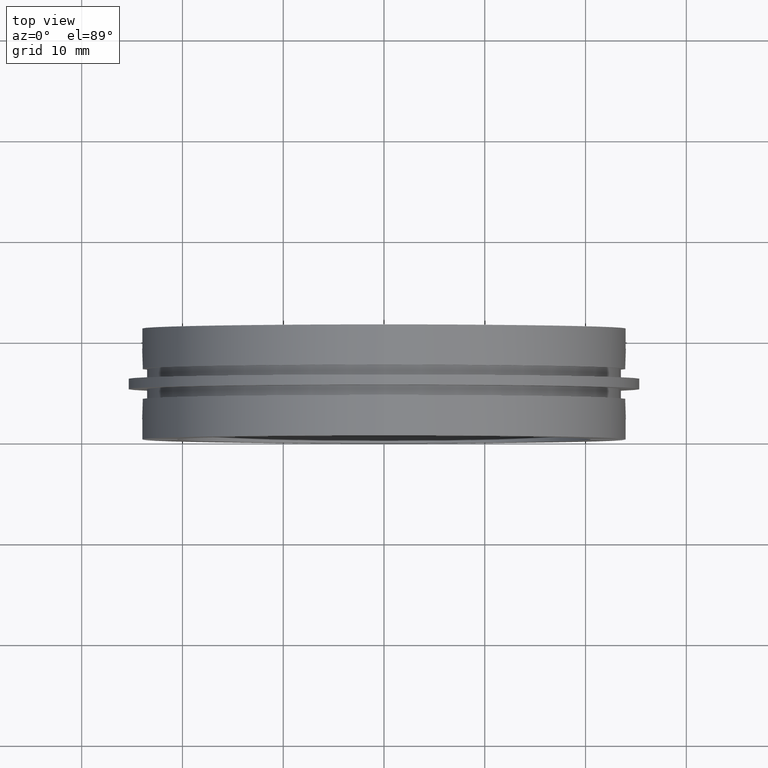
[diagram: clean part render]
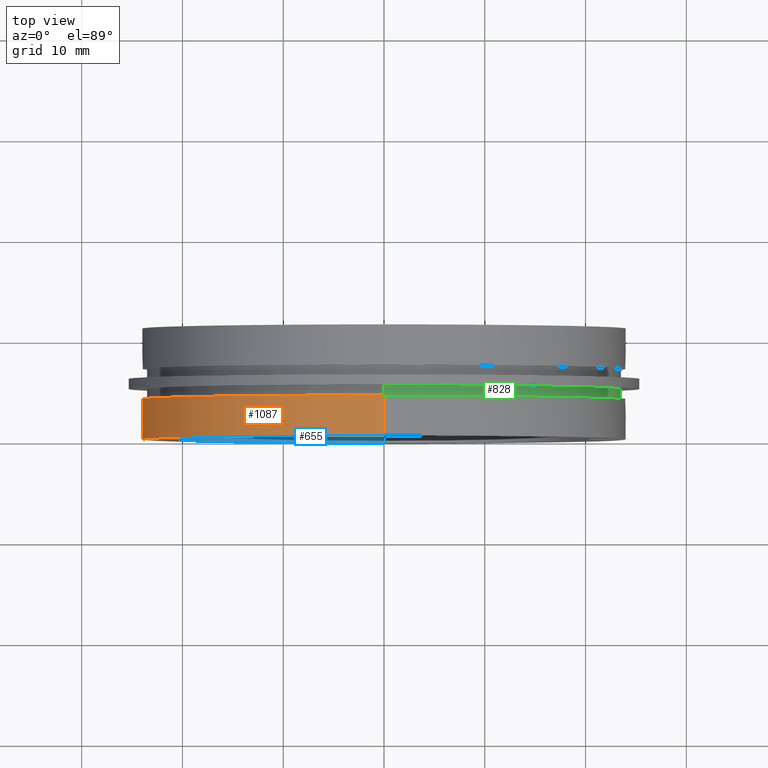
[diagram: same view with three faces highlighted in distinct colors, each labeled with its STEP entity id]
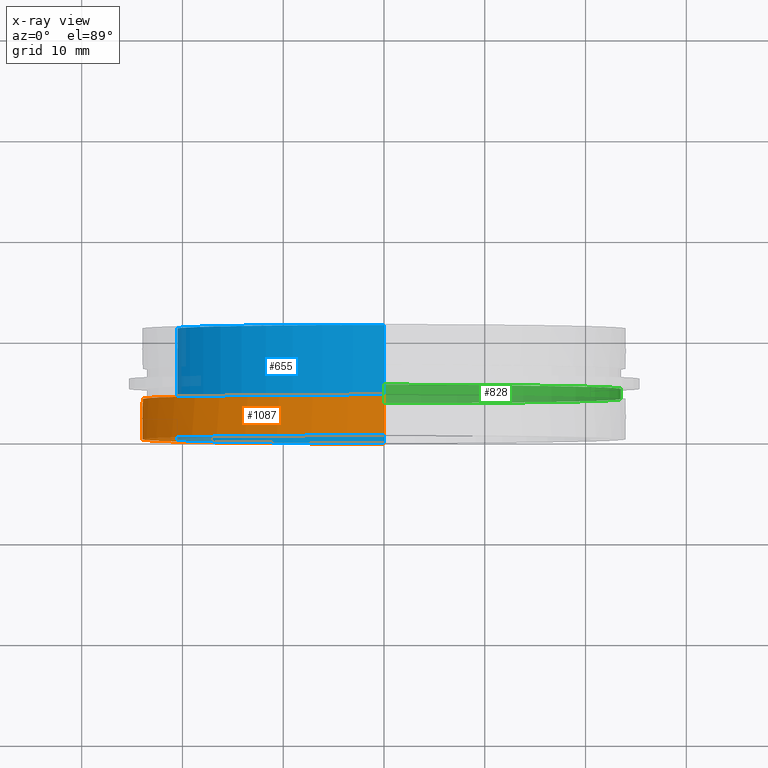
[diagram: x-ray of the same camera — body ghosted, the three highlighted faces saturated]
A machine part, top view with three faces highlighted in distinct colors.
The next image is the same camera in x-ray (body ghosted, the three faces saturated) — at least one of them is partly hidden behind the body in this view.
Their STEP definitions:

[orange] entity #1087 — the highlighted cylindrical surface (partial cylindrical patch) has radius 24 mm, axis along (-0, 1, -0).
#6 = DIRECTION ( 'NONE',  ( -0.0000000000000000000, 1.000000000000000000, -0.0000000000000000000 ) ) ;
#18 = CARTESIAN_POINT ( 'NONE',  ( 0.0000000000000000000, 22.67749945107591400, 0.0000000000000000000 ) ) ;
#53 = EDGE_CURVE ( 'NONE', #882, #296, #698, .T. ) ;
#74 = ORIENTED_EDGE ( 'NONE', *, *, #53, .F. ) ;
#82 = DIRECTION ( 'NONE',  ( 0.0000000000000000000, 0.0000000000000000000, 1.000000000000000000 ) ) ;
#96 = EDGE_LOOP ( 'NONE', ( #1080, #735, #413, #912, #627, #392, #553, #74 ) ) ;
#126 = AXIS2_PLACEMENT_3D ( 'NONE', #609, #521, #432 ) ;
#140 = AXIS2_PLACEMENT_3D ( 'NONE', #18, #381, #942 ) ;
#171 = CARTESIAN_POINT ( 'NONE',  ( 2.939152317953647500E-015, 0.0000000000000000000, -23.99999999999999600 ) ) ;
#219 = DIRECTION ( 'NONE',  ( 0.0000000000000000000, -1.000000000000000000, 0.0000000000000000000 ) ) ;
#253 = VECTOR ( 'NONE', #6, 1000.000000000000000 ) ;
#260 = VERTEX_POINT ( 'NONE', #430 ) ;
#276 = DIRECTION ( 'NONE',  ( -0.0000000000000000000, 1.000000000000000000, -0.0000000000000000000 ) ) ;
#281 = VERTEX_POINT ( 'NONE', #613 ) ;
#294 = EDGE_CURVE ( 'NONE', #725, #777, #636, .T. ) ;
#296 = VERTEX_POINT ( 'NONE', #1055 ) ;
#312 = DIRECTION ( 'NONE',  ( 0.0000000000000000000, 0.0000000000000000000, 1.000000000000000000 ) ) ;
#373 = LINE ( 'NONE', #1146, #794 ) ;
#381 = DIRECTION ( 'NONE',  ( -0.0000000000000000000, 1.000000000000000000, -0.0000000000000000000 ) ) ;
#392 = ORIENTED_EDGE ( 'NONE', *, *, #827, .T. ) ;
#395 = CARTESIAN_POINT ( 'NONE',  ( 0.0000000000000000000, 4.000000000000000000, 0.0000000000000000000 ) ) ;
#413 = ORIENTED_EDGE ( 'NONE', *, *, #524, .F. ) ;
#416 = LINE ( 'NONE', #659, #1091 ) ;
#430 = CARTESIAN_POINT ( 'NONE',  ( -23.97915761656359700, 1.999999999999998200, 1.000000000000000200 ) ) ;
#432 = DIRECTION ( 'NONE',  ( 0.0000000000000000000, 0.0000000000000000000, 1.000000000000000000 ) ) ;
#439 = CARTESIAN_POINT ( 'NONE',  ( 0.0000000000000000000, 22.67749945107591400, 23.99999999999999600 ) ) ;
#467 = DIRECTION ( 'NONE',  ( -0.0000000000000000000, 1.000000000000000000, -0.0000000000000000000 ) ) ;
#521 = DIRECTION ( 'NONE',  ( -0.0000000000000000000, -1.000000000000000000, -0.0000000000000000000 ) ) ;
#524 = EDGE_CURVE ( 'NONE', #628, #777, #416, .T. ) ;
#553 = ORIENTED_EDGE ( 'NONE', *, *, #970, .T. ) ;
#559 = FACE_OUTER_BOUND ( 'NONE', #96, .T. ) ;
#589 = VECTOR ( 'NONE', #1004, 1000.000000000000000 ) ;
#604 = AXIS2_PLACEMENT_3D ( 'NONE', #805, #276, #693 ) ;
#609 = CARTESIAN_POINT ( 'NONE',  ( 0.0000000000000000000, 1.999999999999998200, 0.0000000000000000000 ) ) ;
#613 = CARTESIAN_POINT ( 'NONE',  ( -23.97915761656359700, 0.0000000000000000000, 1.000000000000000000 ) ) ;
#616 = DIRECTION ( 'NONE',  ( -0.0000000000000000000, 1.000000000000000000, -0.0000000000000000000 ) ) ;
#627 = ORIENTED_EDGE ( 'NONE', *, *, #1061, .F. ) ;
#628 = VERTEX_POINT ( 'NONE', #816 ) ;
#636 = CIRCLE ( 'NONE', #1027, 23.99999999999999600 ) ;
#659 = CARTESIAN_POINT ( 'NONE',  ( -23.97915761656359400, 22.67749945107591400, -0.9999999999999943400 ) ) ;
#672 = CARTESIAN_POINT ( 'NONE',  ( -23.97915761656359700, 0.0000000000000000000, -1.000000000000000000 ) ) ;
#681 = CYLINDRICAL_SURFACE ( 'NONE', #140, 23.99999999999999600 ) ;
#693 = DIRECTION ( 'NONE',  ( 0.0000000000000000000, 0.0000000000000000000, 1.000000000000000000 ) ) ;
#698 = CIRCLE ( 'NONE', #809, 23.99999999999999600 ) ;
#713 = VERTEX_POINT ( 'NONE', #1035 ) ;
#725 = VERTEX_POINT ( 'NONE', #171 ) ;
#735 = ORIENTED_EDGE ( 'NONE', *, *, #294, .T. ) ;
#770 = EDGE_CURVE ( 'NONE', #260, #628, #976, .T. ) ;
#777 = VERTEX_POINT ( 'NONE', #672 ) ;
#794 = VECTOR ( 'NONE', #467, 1000.000000000000000 ) ;
#805 = CARTESIAN_POINT ( 'NONE',  ( 0.0000000000000000000, 0.0000000000000000000, 0.0000000000000000000 ) ) ;
#809 = AXIS2_PLACEMENT_3D ( 'NONE', #395, #839, #312 ) ;
#815 = LINE ( 'NONE', #939, #589 ) ;
#816 = CARTESIAN_POINT ( 'NONE',  ( -23.97915761656359400, 2.000000000000000000, -0.9999999999999995600 ) ) ;
#827 = EDGE_CURVE ( 'NONE', #281, #713, #833, .T. ) ;
#833 = CIRCLE ( 'NONE', #604, 23.99999999999999600 ) ;
#839 = DIRECTION ( 'NONE',  ( -0.0000000000000000000, 1.000000000000000000, -0.0000000000000000000 ) ) ;
#871 = CARTESIAN_POINT ( 'NONE',  ( 2.939152317953647500E-015, 4.000000000000000000, -23.99999999999999600 ) ) ;
#882 = VERTEX_POINT ( 'NONE', #871 ) ;
#912 = ORIENTED_EDGE ( 'NONE', *, *, #770, .F. ) ;
#939 = CARTESIAN_POINT ( 'NONE',  ( -23.97915761656359700, 22.67749945107591400, 1.000000000000003800 ) ) ;
#942 = DIRECTION ( 'NONE',  ( 0.0000000000000000000, 0.0000000000000000000, 1.000000000000000000 ) ) ;
#965 = LINE ( 'NONE', #439, #253 ) ;
#970 = EDGE_CURVE ( 'NONE', #713, #296, #965, .T. ) ;
#976 = CIRCLE ( 'NONE', #126, 23.99999999999999600 ) ;
#1004 = DIRECTION ( 'NONE',  ( -0.0000000000000000000, 1.000000000000000000, -0.0000000000000000000 ) ) ;
#1027 = AXIS2_PLACEMENT_3D ( 'NONE', #1143, #616, #82 ) ;
#1035 = CARTESIAN_POINT ( 'NONE',  ( 0.0000000000000000000, 0.0000000000000000000, 23.99999999999999600 ) ) ;
#1055 = CARTESIAN_POINT ( 'NONE',  ( 0.0000000000000000000, 4.000000000000000000, 23.99999999999999600 ) ) ;
#1061 = EDGE_CURVE ( 'NONE', #281, #260, #815, .T. ) ;
#1068 = EDGE_CURVE ( 'NONE', #725, #882, #373, .T. ) ;
#1080 = ORIENTED_EDGE ( 'NONE', *, *, #1068, .F. ) ;
#1087 = ADVANCED_FACE ( 'NONE', ( #559 ), #681, .T. ) ;
#1091 = VECTOR ( 'NONE', #219, 1000.000000000000000 ) ;
#1143 = CARTESIAN_POINT ( 'NONE',  ( 0.0000000000000000000, 0.0000000000000000000, 0.0000000000000000000 ) ) ;
#1146 = CARTESIAN_POINT ( 'NONE',  ( 2.939152317953647500E-015, 22.67749945107591400, -23.99999999999999600 ) ) ;

[blue] entity #655 — the highlighted cylindrical surface (partial cylindrical patch) has radius 20.5 mm, axis along (-0, 1, -0).
#7 = AXIS2_PLACEMENT_3D ( 'NONE', #222, #768, #811 ) ;
#10 = CARTESIAN_POINT ( 'NONE',  ( 2.510525938252074100E-015, 22.67749945107591400, -20.49999999999999600 ) ) ;
#58 = LINE ( 'NONE', #10, #498 ) ;
#77 = CARTESIAN_POINT ( 'NONE',  ( -20.47559522944326500, 1.999999999999998200, 1.000000000000000200 ) ) ;
#78 = CARTESIAN_POINT ( 'NONE',  ( -20.47559522944326500, 0.0000000000000000000, -1.000000000000000000 ) ) ;
#80 = CYLINDRICAL_SURFACE ( 'NONE', #982, 20.49999999999999600 ) ;
#89 = DIRECTION ( 'NONE',  ( -0.0000000000000000000, 1.000000000000000000, -0.0000000000000000000 ) ) ;
#95 = LINE ( 'NONE', #911, #831 ) ;
#106 = VECTOR ( 'NONE', #712, 1000.000000000000000 ) ;
#115 = CARTESIAN_POINT ( 'NONE',  ( -20.47559522944326500, 0.0000000000000000000, 1.000000000000000000 ) ) ;
#132 = ORIENTED_EDGE ( 'NONE', *, *, #951, .F. ) ;
#141 = EDGE_LOOP ( 'NONE', ( #249, #684, #532, #776, #132, #580, #674, #891, #460, #1036, #879, #819 ) ) ;
#181 = VECTOR ( 'NONE', #393, 1000.000000000000000 ) ;
#192 = FACE_OUTER_BOUND ( 'NONE', #141, .T. ) ;
#215 = DIRECTION ( 'NONE',  ( 0.0000000000000000000, 0.0000000000000000000, 1.000000000000000000 ) ) ;
#222 = CARTESIAN_POINT ( 'NONE',  ( 0.0000000000000000000, 11.00000000000000000, 0.0000000000000000000 ) ) ;
#232 = AXIS2_PLACEMENT_3D ( 'NONE', #804, #272, #897 ) ;
#246 = EDGE_CURVE ( 'NONE', #448, #259, #666, .T. ) ;
#249 = ORIENTED_EDGE ( 'NONE', *, *, #1134, .F. ) ;
#259 = VERTEX_POINT ( 'NONE', #77 ) ;
#272 = DIRECTION ( 'NONE',  ( -0.0000000000000000000, 1.000000000000000000, -0.0000000000000000000 ) ) ;
#285 = VERTEX_POINT ( 'NONE', #78 ) ;
#291 = DIRECTION ( 'NONE',  ( -0.0000000000000000000, 1.000000000000000000, -0.0000000000000000000 ) ) ;
#345 = DIRECTION ( 'NONE',  ( 0.0000000000000000000, 1.000000000000000000, 0.0000000000000000000 ) ) ;
#351 = VECTOR ( 'NONE', #914, 1000.000000000000000 ) ;
#352 = EDGE_CURVE ( 'NONE', #561, #597, #1052, .T. ) ;
#355 = EDGE_CURVE ( 'NONE', #638, #993, #814, .T. ) ;
#382 = EDGE_CURVE ( 'NONE', #633, #1023, #850, .T. ) ;
#386 = VERTEX_POINT ( 'NONE', #447 ) ;
#393 = DIRECTION ( 'NONE',  ( -0.0000000000000000000, 1.000000000000000000, -0.0000000000000000000 ) ) ;
#401 = CARTESIAN_POINT ( 'NONE',  ( 2.510525938252074100E-015, 0.0000000000000000000, -20.49999999999999600 ) ) ;
#404 = AXIS2_PLACEMENT_3D ( 'NONE', #446, #1069, #535 ) ;
#422 = EDGE_CURVE ( 'NONE', #808, #386, #58, .T. ) ;
#446 = CARTESIAN_POINT ( 'NONE',  ( 0.0000000000000000000, 9.000000000000000000, 0.0000000000000000000 ) ) ;
#447 = CARTESIAN_POINT ( 'NONE',  ( 2.510525938252074500E-015, 11.00000000000000000, -20.50000000000000000 ) ) ;
#448 = VERTEX_POINT ( 'NONE', #904 ) ;
#450 = DIRECTION ( 'NONE',  ( -0.0000000000000000000, 1.000000000000000000, -0.0000000000000000000 ) ) ;
#460 = ORIENTED_EDGE ( 'NONE', *, *, #382, .F. ) ;
#479 = CARTESIAN_POINT ( 'NONE',  ( -20.47559522944326500, 22.67749945107591400, -0.9999999999999943400 ) ) ;
#482 = EDGE_CURVE ( 'NONE', #285, #448, #890, .T. ) ;
#492 = AXIS2_PLACEMENT_3D ( 'NONE', #582, #845, #215 ) ;
#498 = VECTOR ( 'NONE', #988, 1000.000000000000000 ) ;
#520 = CIRCLE ( 'NONE', #7, 20.50000000000000000 ) ;
#532 = ORIENTED_EDGE ( 'NONE', *, *, #742, .T. ) ;
#535 = DIRECTION ( 'NONE',  ( 0.0000000000000000000, 0.0000000000000000000, -1.000000000000000000 ) ) ;
#538 = CARTESIAN_POINT ( 'NONE',  ( 0.0000000000000000000, 11.00000000000000000, 0.0000000000000000000 ) ) ;
#560 = CARTESIAN_POINT ( 'NONE',  ( -20.47559522944327200, 11.00000000000000000, -0.9999999999999978900 ) ) ;
#561 = VERTEX_POINT ( 'NONE', #937 ) ;
#569 = DIRECTION ( 'NONE',  ( -0.0000000000000000000, 1.000000000000000000, -0.0000000000000000000 ) ) ;
#580 = ORIENTED_EDGE ( 'NONE', *, *, #355, .F. ) ;
#582 = CARTESIAN_POINT ( 'NONE',  ( 0.0000000000000000000, 0.0000000000000000000, 0.0000000000000000000 ) ) ;
#587 = VECTOR ( 'NONE', #89, 1000.000000000000000 ) ;
#591 = EDGE_CURVE ( 'NONE', #1023, #620, #95, .T. ) ;
#597 = VERTEX_POINT ( 'NONE', #560 ) ;
#620 = VERTEX_POINT ( 'NONE', #644 ) ;
#621 = CARTESIAN_POINT ( 'NONE',  ( -20.47559522944326500, 22.67749945107591400, -1.000000000000000000 ) ) ;
#633 = VERTEX_POINT ( 'NONE', #115 ) ;
#638 = VERTEX_POINT ( 'NONE', #650 ) ;
#644 = CARTESIAN_POINT ( 'NONE',  ( 0.0000000000000000000, 11.00000000000000000, 20.50000000000000000 ) ) ;
#650 = CARTESIAN_POINT ( 'NONE',  ( -20.47559522944326800, 11.00000000000000000, 1.000000000000001300 ) ) ;
#655 = ADVANCED_FACE ( 'NONE', ( #192 ), #80, .F. ) ;
#660 = AXIS2_PLACEMENT_3D ( 'NONE', #538, #450, #985 ) ;
#666 = CIRCLE ( 'NONE', #908, 20.49999999999999600 ) ;
#674 = ORIENTED_EDGE ( 'NONE', *, *, #823, .T. ) ;
#684 = ORIENTED_EDGE ( 'NONE', *, *, #422, .T. ) ;
#712 = DIRECTION ( 'NONE',  ( 0.0000000000000000000, -1.000000000000000000, 0.0000000000000000000 ) ) ;
#727 = CARTESIAN_POINT ( 'NONE',  ( 0.0000000000000000000, 22.67749945107591400, 0.0000000000000000000 ) ) ;
#742 = EDGE_CURVE ( 'NONE', #386, #597, #520, .T. ) ;
#768 = DIRECTION ( 'NONE',  ( -0.0000000000000000000, 1.000000000000000000, -0.0000000000000000000 ) ) ;
#771 = CIRCLE ( 'NONE', #660, 20.50000000000000000 ) ;
#776 = ORIENTED_EDGE ( 'NONE', *, *, #352, .F. ) ;
#804 = CARTESIAN_POINT ( 'NONE',  ( 0.0000000000000000000, 0.0000000000000000000, 0.0000000000000000000 ) ) ;
#808 = VERTEX_POINT ( 'NONE', #401 ) ;
#811 = DIRECTION ( 'NONE',  ( 0.0000000000000000000, 0.0000000000000000000, 1.000000000000000000 ) ) ;
#814 = LINE ( 'NONE', #889, #106 ) ;
#819 = ORIENTED_EDGE ( 'NONE', *, *, #482, .F. ) ;
#823 = EDGE_CURVE ( 'NONE', #638, #620, #771, .T. ) ;
#831 = VECTOR ( 'NONE', #291, 1000.000000000000000 ) ;
#845 = DIRECTION ( 'NONE',  ( -0.0000000000000000000, 1.000000000000000000, -0.0000000000000000000 ) ) ;
#850 = CIRCLE ( 'NONE', #232, 20.49999999999999600 ) ;
#879 = ORIENTED_EDGE ( 'NONE', *, *, #246, .F. ) ;
#889 = CARTESIAN_POINT ( 'NONE',  ( -20.47559522944326500, 22.67749945107591400, 1.000000000000003100 ) ) ;
#890 = LINE ( 'NONE', #479, #181 ) ;
#891 = ORIENTED_EDGE ( 'NONE', *, *, #591, .F. ) ;
#897 = DIRECTION ( 'NONE',  ( 0.0000000000000000000, 0.0000000000000000000, 1.000000000000000000 ) ) ;
#904 = CARTESIAN_POINT ( 'NONE',  ( -20.47559522944326500, 2.000000000000000000, -0.9999999999999995600 ) ) ;
#908 = AXIS2_PLACEMENT_3D ( 'NONE', #1128, #345, #969 ) ;
#911 = CARTESIAN_POINT ( 'NONE',  ( 0.0000000000000000000, 22.67749945107591400, 20.49999999999999600 ) ) ;
#914 = DIRECTION ( 'NONE',  ( 0.0000000000000000000, -1.000000000000000000, 0.0000000000000000000 ) ) ;
#937 = CARTESIAN_POINT ( 'NONE',  ( -20.47559522944326800, 9.000000000000000000, -0.9999999999999974500 ) ) ;
#951 = EDGE_CURVE ( 'NONE', #993, #561, #991, .T. ) ;
#969 = DIRECTION ( 'NONE',  ( 0.0000000000000000000, 0.0000000000000000000, 1.000000000000000000 ) ) ;
#982 = AXIS2_PLACEMENT_3D ( 'NONE', #727, #569, #1126 ) ;
#985 = DIRECTION ( 'NONE',  ( 0.0000000000000000000, 0.0000000000000000000, 1.000000000000000000 ) ) ;
#988 = DIRECTION ( 'NONE',  ( -0.0000000000000000000, 1.000000000000000000, -0.0000000000000000000 ) ) ;
#991 = CIRCLE ( 'NONE', #404, 20.49999999999999600 ) ;
#993 = VERTEX_POINT ( 'NONE', #1064 ) ;
#1023 = VERTEX_POINT ( 'NONE', #1057 ) ;
#1029 = EDGE_CURVE ( 'NONE', #259, #633, #1056, .T. ) ;
#1036 = ORIENTED_EDGE ( 'NONE', *, *, #1029, .F. ) ;
#1052 = LINE ( 'NONE', #621, #587 ) ;
#1056 = LINE ( 'NONE', #1116, #351 ) ;
#1057 = CARTESIAN_POINT ( 'NONE',  ( 0.0000000000000000000, 0.0000000000000000000, 20.49999999999999600 ) ) ;
#1064 = CARTESIAN_POINT ( 'NONE',  ( -20.47559522944326500, 9.000000000000000000, 1.000000000000001100 ) ) ;
#1069 = DIRECTION ( 'NONE',  ( -0.0000000000000000000, -1.000000000000000000, -0.0000000000000000000 ) ) ;
#1116 = CARTESIAN_POINT ( 'NONE',  ( -20.47559522944326500, 22.67749945107591400, 1.000000000000003800 ) ) ;
#1122 = CIRCLE ( 'NONE', #492, 20.49999999999999600 ) ;
#1126 = DIRECTION ( 'NONE',  ( 0.0000000000000000000, 0.0000000000000000000, 1.000000000000000000 ) ) ;
#1128 = CARTESIAN_POINT ( 'NONE',  ( 0.0000000000000000000, 1.999999999999998200, 0.0000000000000000000 ) ) ;
#1134 = EDGE_CURVE ( 'NONE', #808, #285, #1122, .T. ) ;

[green] entity #828 — the highlighted cylindrical surface (partial cylindrical patch) has radius 23.5 mm, axis along (-0, 1, -0).
#32 = DIRECTION ( 'NONE',  ( 0.0000000000000000000, 0.0000000000000000000, 1.000000000000000000 ) ) ;
#34 = DIRECTION ( 'NONE',  ( -0.0000000000000000000, 1.000000000000000000, -0.0000000000000000000 ) ) ;
#87 = VERTEX_POINT ( 'NONE', #136 ) ;
#109 = EDGE_CURVE ( 'NONE', #385, #335, #1114, .T. ) ;
#128 = LINE ( 'NONE', #406, #1040 ) ;
#136 = CARTESIAN_POINT ( 'NONE',  ( 0.0000000000000000000, 4.000000000000000000, 23.49999999999999600 ) ) ;
#153 = DIRECTION ( 'NONE',  ( 0.0000000000000000000, 0.0000000000000000000, 1.000000000000000000 ) ) ;
#163 = DIRECTION ( 'NONE',  ( -0.0000000000000000000, 1.000000000000000000, -0.0000000000000000000 ) ) ;
#202 = VECTOR ( 'NONE', #34, 1000.000000000000000 ) ;
#211 = DIRECTION ( 'NONE',  ( -0.0000000000000000000, 1.000000000000000000, -0.0000000000000000000 ) ) ;
#264 = LINE ( 'NONE', #1095, #202 ) ;
#318 = CARTESIAN_POINT ( 'NONE',  ( 2.877919977996279900E-015, 4.000000000000000000, -23.49999999999999600 ) ) ;
#335 = VERTEX_POINT ( 'NONE', #796 ) ;
#385 = VERTEX_POINT ( 'NONE', #984 ) ;
#406 = CARTESIAN_POINT ( 'NONE',  ( 0.0000000000000000000, 22.67749945107591400, 23.50000000000000000 ) ) ;
#471 = EDGE_CURVE ( 'NONE', #545, #335, #264, .T. ) ;
#495 = ORIENTED_EDGE ( 'NONE', *, *, #863, .T. ) ;
#526 = FACE_OUTER_BOUND ( 'NONE', #759, .T. ) ;
#545 = VERTEX_POINT ( 'NONE', #318 ) ;
#546 = DIRECTION ( 'NONE',  ( -0.0000000000000000000, 1.000000000000000000, -0.0000000000000000000 ) ) ;
#564 = CARTESIAN_POINT ( 'NONE',  ( 0.0000000000000000000, 5.000000000000000900, 0.0000000000000000000 ) ) ;
#570 = ORIENTED_EDGE ( 'NONE', *, *, #471, .T. ) ;
#626 = DIRECTION ( 'NONE',  ( 0.0000000000000000000, 0.0000000000000000000, 1.000000000000000000 ) ) ;
#759 = EDGE_LOOP ( 'NONE', ( #495, #570, #1140, #1102 ) ) ;
#781 = CARTESIAN_POINT ( 'NONE',  ( 0.0000000000000000000, 4.000000000000000000, 0.0000000000000000000 ) ) ;
#796 = CARTESIAN_POINT ( 'NONE',  ( 2.877919977996280300E-015, 5.000000000000000900, -23.50000000000000000 ) ) ;
#800 = DIRECTION ( 'NONE',  ( -0.0000000000000000000, 1.000000000000000000, -0.0000000000000000000 ) ) ;
#807 = CIRCLE ( 'NONE', #962, 23.49999999999999600 ) ;
#828 = ADVANCED_FACE ( 'NONE', ( #526 ), #1041, .T. ) ;
#863 = EDGE_CURVE ( 'NONE', #87, #545, #807, .T. ) ;
#872 = AXIS2_PLACEMENT_3D ( 'NONE', #564, #211, #32 ) ;
#898 = CARTESIAN_POINT ( 'NONE',  ( 0.0000000000000000000, 22.67749945107591400, 0.0000000000000000000 ) ) ;
#901 = AXIS2_PLACEMENT_3D ( 'NONE', #898, #546, #153 ) ;
#962 = AXIS2_PLACEMENT_3D ( 'NONE', #781, #163, #626 ) ;
#984 = CARTESIAN_POINT ( 'NONE',  ( 0.0000000000000000000, 5.000000000000000900, 23.50000000000000000 ) ) ;
#1040 = VECTOR ( 'NONE', #800, 1000.000000000000000 ) ;
#1041 = CYLINDRICAL_SURFACE ( 'NONE', #901, 23.50000000000000000 ) ;
#1095 = CARTESIAN_POINT ( 'NONE',  ( 2.877919977996280300E-015, 22.67749945107591400, -23.50000000000000000 ) ) ;
#1102 = ORIENTED_EDGE ( 'NONE', *, *, #1127, .F. ) ;
#1114 = CIRCLE ( 'NONE', #872, 23.50000000000000000 ) ;
#1127 = EDGE_CURVE ( 'NONE', #87, #385, #128, .T. ) ;
#1140 = ORIENTED_EDGE ( 'NONE', *, *, #109, .F. ) ;